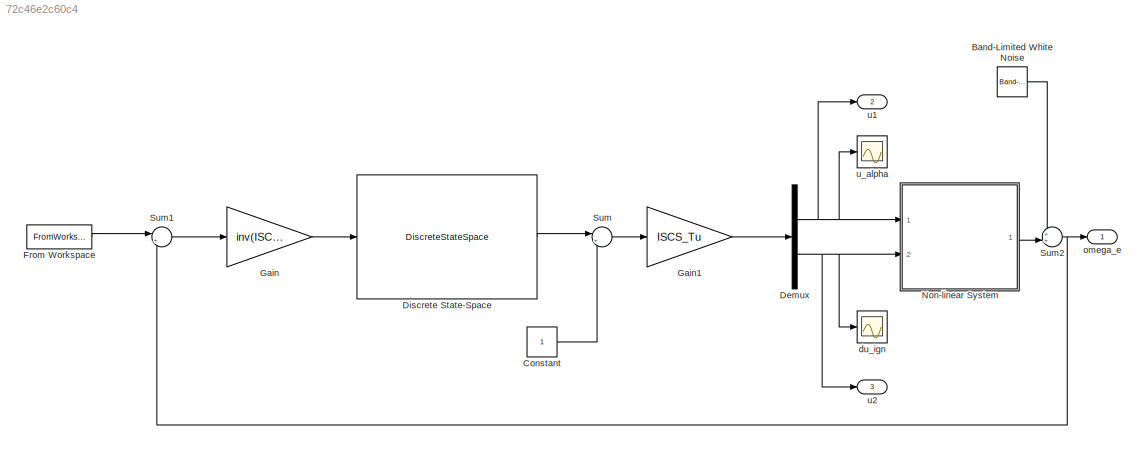
MODEL slx_72c46e2c60c4
KIND model
CONFIG AbsTol = auto
CONFIG EnableMultiTasking = off
CONFIG FixedStep = auto
CONFIG MaxStep = auto
CONFIG MinStep = auto
CONFIG RelTol = 1e-3
CONFIG SampleTimeConstraint = Unconstrained
CONFIG Solver = VariableStepAuto
CONFIG SolverName = VariableStepAuto
CONFIG StartTime = 0.0
CONFIG StopTime = 10.0
BLOCK [Reference] Band-Limited White Noise  REF=simulink/Sources/Band-Limited
White Noise
  Ports = [0, 1]
  SourceBlock = simulink/Sources/Band-Limited\nWhite Noise
  SourceProductBaseCode = SL
  SourceProductName = Simulink
  SourceType = Band-Limited White Noise.
BLOCK [Constant] Constant
BLOCK [Demux] Demux
  DisplayOption = bar
  Outputs = 2
  Ports = [1, 2]
BLOCK [DiscreteStateSpace] Discrete State-Space
  A = ISCS_Ad
  B = ISCS_Bd
  C = ISCS_Cd
  D = ISCS_Dd
  SampleTime = -1
BLOCK [FromWorkspace] From Workspace
  SampleTime = 0
  VariableName = omega_ref
  ZeroCross = on
BLOCK [Gain] Gain
  Gain = inv(ISCS_Ty)
  OutDataTypeStr = Inherit: Inherit via internal rule
  ParamDataTypeStr = Inherit: Inherit via internal rule
  SaturateOnIntegerOverflow = off
BLOCK [Gain] Gain1
  Gain = ISCS_Tu
  OutDataTypeStr = Inherit: Inherit via internal rule
  ParamDataTypeStr = Inherit: Inherit via internal rule
  SaturateOnIntegerOverflow = off
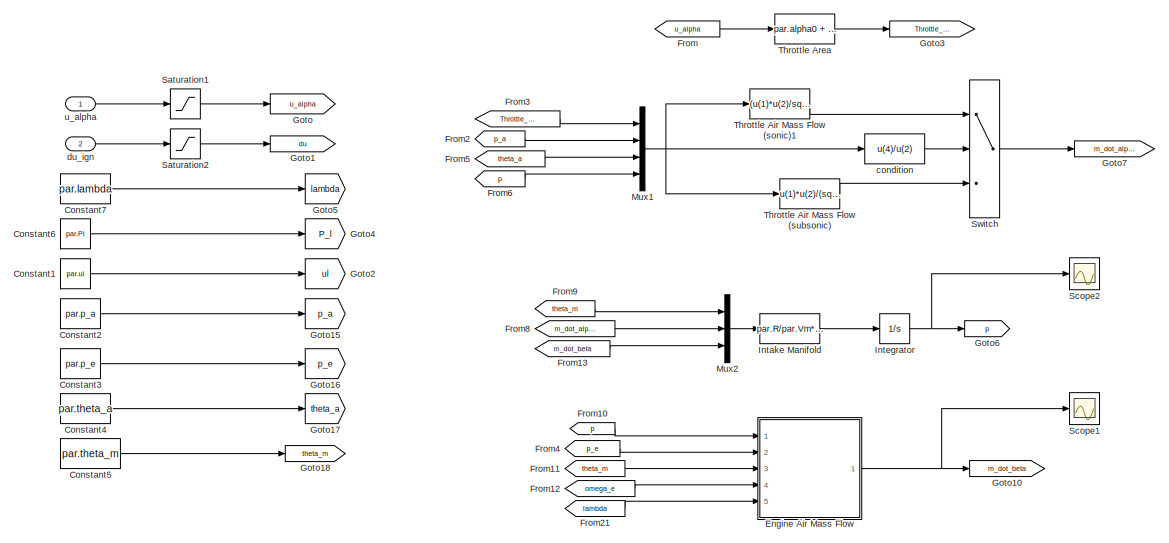
[diagram: Non-linear System - part 1/2, left side, full height]
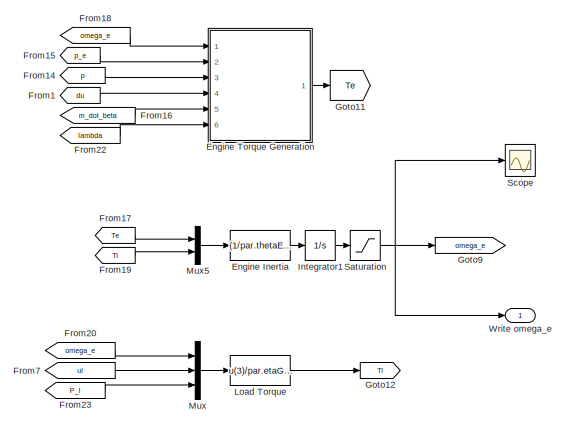
[diagram: Non-linear System - part 2/2, right side, full height]
BLOCK [SubSystem] Non-linear System
  Ports = [2, 1]
  RequestExecContextInheritance = off
  Variant = off
BLOCK [Constant] Non-linear System/Constant1
  Value = par.ul
BLOCK [Constant] Non-linear System/Constant2
  Value = par.p_a
BLOCK [Constant] Non-linear System/Constant3
  Value = par.p_e
BLOCK [Constant] Non-linear System/Constant4
  Value = par.theta_a
BLOCK [Constant] Non-linear System/Constant5
  Value = par.theta_m
BLOCK [Constant] Non-linear System/Constant6
  Value = par.Pl
BLOCK [Constant] Non-linear System/Constant7
  Value = par.lambda
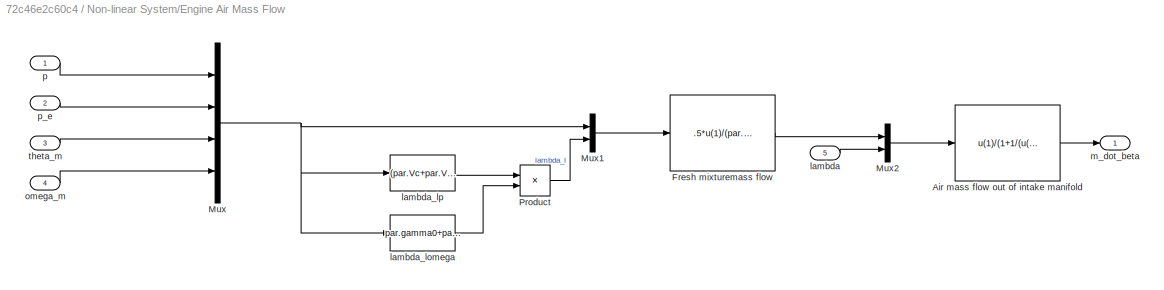
BLOCK [SubSystem] Non-linear System/Engine Air Mass Flow
  Ports = [5, 1]
  RequestExecContextInheritance = off
  Variant = off
BLOCK [Fcn] Non-linear System/Engine Air Mass Flow/Air mass flow out of intake manifold
  Expr = u(1)/(1+1/(u(2)*par.sigma0))
BLOCK [Fcn] Non-linear System/Engine Air Mass Flow/Fresh mixturemass  flow
  Expr = .5*u(1)/(par.R*u(3))*u(5)*par.Vd*u(4)/(2*pi)
BLOCK [Mux] Non-linear System/Engine Air Mass Flow/Mux
  DisplayOption = bar
  Ports = [4, 1]
BLOCK [Mux] Non-linear System/Engine Air Mass Flow/Mux1
  DisplayOption = bar
  Inputs = 2
  Ports = [2, 1]
BLOCK [Mux] Non-linear System/Engine Air Mass Flow/Mux2
  DisplayOption = bar
  Inputs = 2
  Ports = [2, 1]
BLOCK [Product] Non-linear System/Engine Air Mass Flow/Product
  InputSameDT = off
  OutDataTypeStr = Inherit: Inherit via internal rule
  Ports = [2, 1]
  RndMeth = Floor
  SaturateOnIntegerOverflow = off
BLOCK [Inport] Non-linear System/Engine Air Mass Flow/lambda
  IconDisplay = Port number
  Port = 5
BLOCK [Fcn] Non-linear System/Engine Air Mass Flow/lambda_lomega
  Expr = par.gamma0+par.gamma1*u(4)
BLOCK [Fcn] Non-linear System/Engine Air Mass Flow/lambda_lp
  Expr = (par.Vc+par.Vd)/par.Vd - (par.Vc/par.Vd)*(u(2)/u(1))^(1/par.kappa)
BLOCK [Outport] Non-linear System/Engine Air Mass Flow/m_dot_beta
  IconDisplay = Port number
BLOCK [Inport] Non-linear System/Engine Air Mass Flow/omega_m
  IconDisplay = Port number
  Port = 4
BLOCK [Inport] Non-linear System/Engine Air Mass Flow/p
  IconDisplay = Port number
BLOCK [Inport] Non-linear System/Engine Air Mass Flow/p_e
  IconDisplay = Port number
  Port = 2
BLOCK [Inport] Non-linear System/Engine Air Mass Flow/theta_m
  IconDisplay = Port number
  Port = 3
BLOCK [Fcn] Non-linear System/Engine Inertia
  Expr = (1/par.thetaE)*(u(1)-u(2))
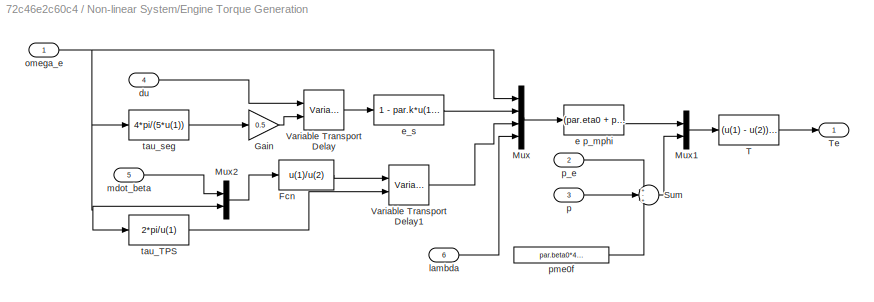
BLOCK [SubSystem] Non-linear System/Engine Torque Generation
  Ports = [6, 1]
  RequestExecContextInheritance = off
  Variant = off
BLOCK [Fcn] Non-linear System/Engine Torque Generation/Fcn
  Expr = u(1)/u(2)
BLOCK [Gain] Non-linear System/Engine Torque Generation/Gain
  Gain = 0.5
  OutDataTypeStr = Inherit: Inherit via internal rule
  ParamDataTypeStr = Inherit: Inherit via internal rule
  SaturateOnIntegerOverflow = off
BLOCK [Mux] Non-linear System/Engine Torque Generation/Mux
  DisplayOption = bar
  Ports = [4, 1]
BLOCK [Mux] Non-linear System/Engine Torque Generation/Mux1
  DisplayOption = bar
  Inputs = 2
  Ports = [2, 1]
BLOCK [Mux] Non-linear System/Engine Torque Generation/Mux2
  DisplayOption = bar
  Inputs = 2
  Ports = [2, 1]
BLOCK [Sum] Non-linear System/Engine Torque Generation/Sum
  IconShape = round
  InputSameDT = off
  Inputs = +-+
  OutDataTypeStr = Inherit: Inherit via internal rule
  Ports = [3, 1]
  SaturateOnIntegerOverflow = off
BLOCK [Fcn] Non-linear System/Engine Torque Generation/T
  Expr = (u(1) - u(2))*(par.Vd/(4*pi))
BLOCK [Outport] Non-linear System/Engine Torque Generation/Te 
  IconDisplay = Port number
BLOCK [VariableTransportDelay] Non-linear System/Engine Torque Generation/Variable Transport Delay
  InitialOutput = par.ss_duign
  MaximumDelay = 10
  MaximumPoints = 10240
  Ports = [2, 1]
BLOCK [VariableTransportDelay] Non-linear System/Engine Torque Generation/Variable Transport Delay1
  InitialOutput = par.ss_mdotalpha/par.ss_omegae
  MaximumDelay = 10
  MaximumPoints = 10240
  Ports = [2, 1]
BLOCK [Inport] Non-linear System/Engine Torque Generation/du
  IconDisplay = Port number
  Port = 4
BLOCK [Fcn] Non-linear System/Engine Torque Generation/e p_mphi
  Expr = (par.eta0 + par.eta1*u(1))*u(2)*(par.Hl/par.Vd)*(4*pi/(u(4)*par.sigma0))*u(3)
BLOCK [Fcn] Non-linear System/Engine Torque Generation/e_s
  Expr = 1 - par.k*u(1)^2
BLOCK [Inport] Non-linear System/Engine Torque Generation/lambda
  IconDisplay = Port number
  Port = 6
BLOCK [Inport] Non-linear System/Engine Torque Generation/mdot_beta
  IconDisplay = Port number
  Port = 5
BLOCK [Inport] Non-linear System/Engine Torque Generation/omega_e
  IconDisplay = Port number
BLOCK [Inport] Non-linear System/Engine Torque Generation/p
  IconDisplay = Port number
  Port = 3
BLOCK [Inport] Non-linear System/Engine Torque Generation/p_e
  IconDisplay = Port number
  Port = 2
BLOCK [Constant] Non-linear System/Engine Torque Generation/pme0f
  Value = par.beta0*4*pi/par.Vd
  VectorParams1D = off
BLOCK [Fcn] Non-linear System/Engine Torque Generation/tau_TPS
  Expr = 2*pi/u(1)
BLOCK [Fcn] Non-linear System/Engine Torque Generation/tau_seg
  Expr = 4*pi/(5*u(1))
BLOCK [From] Non-linear System/From
  GotoTag = u_alpha
BLOCK [From] Non-linear System/From1
  GotoTag = du
BLOCK [From] Non-linear System/From10
  GotoTag = p
BLOCK [From] Non-linear System/From11
  GotoTag = theta_m
BLOCK [From] Non-linear System/From12
  GotoTag = omega_e
BLOCK [From] Non-linear System/From13
  GotoTag = m_dot_beta
BLOCK [From] Non-linear System/From14
  GotoTag = p
BLOCK [From] Non-linear System/From15
  GotoTag = p_e
BLOCK [From] Non-linear System/From16
  GotoTag = m_dot_beta
BLOCK [From] Non-linear System/From17
  GotoTag = Te
BLOCK [From] Non-linear System/From18
  GotoTag = omega_e
BLOCK [From] Non-linear System/From19
  GotoTag = Tl
BLOCK [From] Non-linear System/From2
  GotoTag = p_a
BLOCK [From] Non-linear System/From20
  GotoTag = omega_e
BLOCK [From] Non-linear System/From21
  GotoTag = lambda
BLOCK [From] Non-linear System/From22
  GotoTag = lambda
BLOCK [From] Non-linear System/From23
  GotoTag = P_l
BLOCK [From] Non-linear System/From3
  GotoTag = Throttle_area
BLOCK [From] Non-linear System/From4
  GotoTag = p_e
BLOCK [From] Non-linear System/From5
  GotoTag = theta_a
BLOCK [From] Non-linear System/From6
  GotoTag = p
BLOCK [From] Non-linear System/From7
  GotoTag = ul
BLOCK [From] Non-linear System/From8
  GotoTag = m_dot_alpha
BLOCK [From] Non-linear System/From9
  GotoTag = theta_m
BLOCK [Goto] Non-linear System/Goto
  GotoTag = u_alpha
BLOCK [Goto] Non-linear System/Goto1
  GotoTag = du
BLOCK [Goto] Non-linear System/Goto10
  GotoTag = m_dot_beta
BLOCK [Goto] Non-linear System/Goto11
  GotoTag = Te
BLOCK [Goto] Non-linear System/Goto12
  GotoTag = Tl
BLOCK [Goto] Non-linear System/Goto15
  GotoTag = p_a
BLOCK [Goto] Non-linear System/Goto16
  GotoTag = p_e
BLOCK [Goto] Non-linear System/Goto17
  GotoTag = theta_a
BLOCK [Goto] Non-linear System/Goto18
  GotoTag = theta_m
BLOCK [Goto] Non-linear System/Goto2
  GotoTag = ul
BLOCK [Goto] Non-linear System/Goto3
  GotoTag = Throttle_area
BLOCK [Goto] Non-linear System/Goto4
  GotoTag = P_l
BLOCK [Goto] Non-linear System/Goto5
  GotoTag = lambda
BLOCK [Goto] Non-linear System/Goto6
  GotoTag = p
BLOCK [Goto] Non-linear System/Goto7
  GotoTag = m_dot_alpha
BLOCK [Goto] Non-linear System/Goto9
  GotoTag = omega_e
BLOCK [Fcn] Non-linear System/Intake Manifold
  Expr = par.R/par.Vm*u(1)*(u(2)-u(3))
BLOCK [Integrator] Non-linear System/Integrator
  InitialCondition = par.pm_initial
  Ports = [1, 1]
BLOCK [Integrator] Non-linear System/Integrator1
  InitialCondition = par.omegae_initial
  Ports = [1, 1]
BLOCK [Fcn] Non-linear System/Load Torque
  Expr = u(3)/par.etaGen/u(1)*u(2)
BLOCK [Mux] Non-linear System/Mux
  DisplayOption = bar
  Inputs = 3
  Ports = [3, 1]
BLOCK [Mux] Non-linear System/Mux1
  DisplayOption = bar
  Ports = [4, 1]
BLOCK [Mux] Non-linear System/Mux2
  DisplayOption = bar
  Inputs = 3
  Ports = [3, 1]
BLOCK [Mux] Non-linear System/Mux5
  DisplayOption = bar
  Inputs = 2
  Ports = [2, 1]
BLOCK [Saturate] Non-linear System/Saturation
  InputPortMap = u0
  LowerLimit = 20
  Ports = [1, 1]
  UpperLimit = 500
BLOCK [Saturate] Non-linear System/Saturation1
  InputPortMap = u0
  LowerLimit = 0
  Ports = [1, 1]
  UpperLimit = 5
BLOCK [Saturate] Non-linear System/Saturation2
  InputPortMap = u0
  LowerLimit = -100
  Ports = [1, 1]
  UpperLimit = 0
BLOCK [Scope] Non-linear System/Scope
  NumInputPorts = 1
  Ports = [1]
  ScopeSpecificationString = Simulink.scopes.TimeScopeBlockCfg('CurrentConfiguration', extmgr.ConfigurationSet(extmgr.Configuration('Core','General UI',true),extmgr.Configuration('Core','Source UI',true),extmgr.Configuration('Sources','WiredSimulink',true,'DataLoggingVariableName','ScopeData1'),extmgr.Configuration('Visuals','Time Domain',true,'SerializedDisplays',{struct('MinYLimReal','58.12067','MaxYLimReal','177.14411','YL...<+1434ch>
BLOCK [Scope] Non-linear System/Scope1
  NumInputPorts = 1
  Ports = [1]
  ScopeSpecificationString = Simulink.scopes.TimeScopeBlockCfg('CurrentConfiguration', extmgr.ConfigurationSet(extmgr.Configuration('Core','General UI',true),extmgr.Configuration('Core','Source UI',true),extmgr.Configuration('Sources','WiredSimulink',true,'DataLoggingVariableName','ScopeData2'),extmgr.Configuration('Visuals','Time Domain',true,'SerializedDisplays',{struct('MinYLimReal','0.00147','MaxYLimReal','0.01206','YLabe...<+1420ch>
BLOCK [Scope] Non-linear System/Scope2
  NumInputPorts = 1
  Ports = [1]
  ScopeSpecificationString = Simulink.scopes.TimeScopeBlockCfg('CurrentConfiguration', extmgr.ConfigurationSet(extmgr.Configuration('Core','General UI',true),extmgr.Configuration('Core','Source UI',true),extmgr.Configuration('Sources','WiredSimulink',true),extmgr.Configuration('Visuals','Time Domain',true,'SerializedDisplays',{struct('MinYLimReal','15605.67625','MaxYLimReal','59548.91371','YLabelReal','','MinYLimMag','15605.6...<+1414ch>
BLOCK [Switch] Non-linear System/Switch
  InputSameDT = off
  SaturateOnIntegerOverflow = off
  Threshold = .5
BLOCK [Fcn] Non-linear System/Throttle Air Mass Flow (sonic)1
  Expr = (u(1)*u(2)/sqrt(par.R*u(3)))*sqrt(2*(u(4)/u(2))*(1-(u(4)/u(2))))
BLOCK [Fcn] Non-linear System/Throttle Air Mass Flow (subsonic)
  Expr = u(1)*u(2)/(sqrt(2)*sqrt(par.R*u(3)))
BLOCK [Fcn] Non-linear System/Throttle Area
  Expr = par.alpha0 + par.alpha1*u(1)
BLOCK [Outport] Non-linear System/Write omega_e
  IconDisplay = Port number
BLOCK [Fcn] Non-linear System/condition 
  Expr = u(4)/u(2)
BLOCK [Inport] Non-linear System/du_ign
  IconDisplay = Port number
  Port = 2
BLOCK [Inport] Non-linear System/u_alpha
  IconDisplay = Port number
BLOCK [Sum] Sum
  IconShape = round
  InputSameDT = off
  Inputs = |++
  OutDataTypeStr = Inherit: Inherit via internal rule
  Ports = [2, 1]
  SaturateOnIntegerOverflow = off
BLOCK [Sum] Sum1
  IconShape = round
  InputSameDT = off
  Inputs = |+-
  OutDataTypeStr = Inherit: Inherit via internal rule
  Ports = [2, 1]
  SaturateOnIntegerOverflow = off
BLOCK [Sum] Sum2
  IconShape = round
  InputSameDT = off
  Inputs = ++|
  OutDataTypeStr = Inherit: Inherit via internal rule
  Ports = [2, 1]
  SaturateOnIntegerOverflow = off
BLOCK [Scope] du_ign
  NumInputPorts = 1
  Ports = [1]
  ScopeSpecificationString = Simulink.scopes.TimeScopeBlockCfg('CurrentConfiguration', extmgr.ConfigurationSet(extmgr.Configuration('Core','General UI',true),extmgr.Configuration('Core','Source UI',true),extmgr.Configuration('Sources','WiredSimulink',true,'DataLoggingVariableName','ScopeData2'),extmgr.Configuration('Visuals','Time Domain',true,'SerializedDisplays',{struct('MinYLimReal','-49.20469','MaxYLimReal','-22.31059','Y...<+1403ch>
BLOCK [Outport] omega_e
  IconDisplay = Port number
BLOCK [Outport] u1
  IconDisplay = Port number
  Port = 2
BLOCK [Outport] u2
  IconDisplay = Port number
  Port = 3
BLOCK [Scope] u_alpha
  NumInputPorts = 1
  Ports = [1]
  ScopeSpecificationString = Simulink.scopes.TimeScopeBlockCfg('CurrentConfiguration', extmgr.ConfigurationSet(extmgr.Configuration('Core','General UI',true),extmgr.Configuration('Core','Source UI',true),extmgr.Configuration('Sources','WiredSimulink',true,'DataLoggingVariableName','ScopeData1'),extmgr.Configuration('Visuals','Time Domain',true,'SerializedDisplays',{struct('MinYLimReal','1.9605','MaxYLimReal','2.35546','YLabel...<+1389ch>
LINE Band-Limited White Noise:1 -> Sum2:1
LINE Constant:1 -> Sum:2
NET Demux:1 -> Non-linear System:1, u1:1, u_alpha:1
NET Demux:2 -> Non-linear System:2, du_ign:1, u2:1
LINE Discrete State-Space:1 -> Sum:1
LINE From Workspace:1 -> Sum1:1
LINE Gain1:1 -> Demux:1
LINE Gain:1 -> Discrete State-Space:1
LINE Non-linear System/Constant1:1 -> Non-linear System/Goto2:1
LINE Non-linear System/Constant2:1 -> Non-linear System/Goto15:1
LINE Non-linear System/Constant3:1 -> Non-linear System/Goto16:1
LINE Non-linear System/Constant4:1 -> Non-linear System/Goto17:1
LINE Non-linear System/Constant5:1 -> Non-linear System/Goto18:1
LINE Non-linear System/Constant6:1 -> Non-linear System/Goto4:1
LINE Non-linear System/Constant7:1 -> Non-linear System/Goto5:1
LINE Non-linear System/Engine Air Mass Flow/Air mass flow out of intake manifold:1 -> Non-linear System/Engine Air Mass Flow/m_dot_beta:1
LINE Non-linear System/Engine Air Mass Flow/Fresh mixturemass  flow:1 -> Non-linear System/Engine Air Mass Flow/Mux2:1
LINE Non-linear System/Engine Air Mass Flow/Mux1:1 -> Non-linear System/Engine Air Mass Flow/Fresh mixturemass  flow:1
LINE Non-linear System/Engine Air Mass Flow/Mux2:1 -> Non-linear System/Engine Air Mass Flow/Air mass flow out of intake manifold:1
NET Non-linear System/Engine Air Mass Flow/Mux:1 -> Non-linear System/Engine Air Mass Flow/Mux1:1, Non-linear System/Engine Air Mass Flow/lambda_lomega:1, Non-linear System/Engine Air Mass Flow/lambda_lp:1
LINE Non-linear System/Engine Air Mass Flow/Product:1 -> Non-linear System/Engine Air Mass Flow/Mux1:2
LINE Non-linear System/Engine Air Mass Flow/lambda:1 -> Non-linear System/Engine Air Mass Flow/Mux2:2
LINE Non-linear System/Engine Air Mass Flow/lambda_lomega:1 -> Non-linear System/Engine Air Mass Flow/Product:2
LINE Non-linear System/Engine Air Mass Flow/lambda_lp:1 -> Non-linear System/Engine Air Mass Flow/Product:1
LINE Non-linear System/Engine Air Mass Flow/omega_m:1 -> Non-linear System/Engine Air Mass Flow/Mux:4
LINE Non-linear System/Engine Air Mass Flow/p:1 -> Non-linear System/Engine Air Mass Flow/Mux:1
LINE Non-linear System/Engine Air Mass Flow/p_e:1 -> Non-linear System/Engine Air Mass Flow/Mux:2
LINE Non-linear System/Engine Air Mass Flow/theta_m:1 -> Non-linear System/Engine Air Mass Flow/Mux:3
NET Non-linear System/Engine Air Mass Flow:1 -> Non-linear System/Goto10:1, Non-linear System/Scope1:1
LINE Non-linear System/Engine Inertia:1 -> Non-linear System/Integrator1:1
LINE Non-linear System/Engine Torque Generation/Fcn:1 -> Non-linear System/Engine Torque Generation/Variable Transport Delay1:1
LINE Non-linear System/Engine Torque Generation/Gain:1 -> Non-linear System/Engine Torque Generation/Variable Transport Delay:2
LINE Non-linear System/Engine Torque Generation/Mux1:1 -> Non-linear System/Engine Torque Generation/T:1
LINE Non-linear System/Engine Torque Generation/Mux2:1 -> Non-linear System/Engine Torque Generation/Fcn:1
LINE Non-linear System/Engine Torque Generation/Mux:1 -> Non-linear System/Engine Torque Generation/e p_mphi:1
LINE Non-linear System/Engine Torque Generation/Sum:1 -> Non-linear System/Engine Torque Generation/Mux1:2
LINE Non-linear System/Engine Torque Generation/T:1 -> Non-linear System/Engine Torque Generation/Te :1
LINE Non-linear System/Engine Torque Generation/Variable Transport Delay1:1 -> Non-linear System/Engine Torque Generation/Mux:3
LINE Non-linear System/Engine Torque Generation/Variable Transport Delay:1 -> Non-linear System/Engine Torque Generation/e_s:1
LINE Non-linear System/Engine Torque Generation/du:1 -> Non-linear System/Engine Torque Generation/Variable Transport Delay:1
LINE Non-linear System/Engine Torque Generation/e p_mphi:1 -> Non-linear System/Engine Torque Generation/Mux1:1
LINE Non-linear System/Engine Torque Generation/e_s:1 -> Non-linear System/Engine Torque Generation/Mux:2
LINE Non-linear System/Engine Torque Generation/lambda:1 -> Non-linear System/Engine Torque Generation/Mux:4
LINE Non-linear System/Engine Torque Generation/mdot_beta:1 -> Non-linear System/Engine Torque Generation/Mux2:1
NET Non-linear System/Engine Torque Generation/omega_e:1 -> Non-linear System/Engine Torque Generation/Mux2:2, Non-linear System/Engine Torque Generation/Mux:1, Non-linear System/Engine Torque Generation/tau_TPS:1, Non-linear System/Engine Torque Generation/tau_seg:1
LINE Non-linear System/Engine Torque Generation/p:1 -> Non-linear System/Engine Torque Generation/Sum:2
LINE Non-linear System/Engine Torque Generation/p_e:1 -> Non-linear System/Engine Torque Generation/Sum:1
LINE Non-linear System/Engine Torque Generation/pme0f:1 -> Non-linear System/Engine Torque Generation/Sum:3
LINE Non-linear System/Engine Torque Generation/tau_TPS:1 -> Non-linear System/Engine Torque Generation/Variable Transport Delay1:2
LINE Non-linear System/Engine Torque Generation/tau_seg:1 -> Non-linear System/Engine Torque Generation/Gain:1
LINE Non-linear System/Engine Torque Generation:1 -> Non-linear System/Goto11:1
LINE Non-linear System/From10:1 -> Non-linear System/Engine Air Mass Flow:1
LINE Non-linear System/From11:1 -> Non-linear System/Engine Air Mass Flow:3
LINE Non-linear System/From12:1 -> Non-linear System/Engine Air Mass Flow:4
LINE Non-linear System/From13:1 -> Non-linear System/Mux2:3
LINE Non-linear System/From14:1 -> Non-linear System/Engine Torque Generation:3
LINE Non-linear System/From15:1 -> Non-linear System/Engine Torque Generation:2
LINE Non-linear System/From16:1 -> Non-linear System/Engine Torque Generation:5
LINE Non-linear System/From17:1 -> Non-linear System/Mux5:1
LINE Non-linear System/From18:1 -> Non-linear System/Engine Torque Generation:1
LINE Non-linear System/From19:1 -> Non-linear System/Mux5:2
LINE Non-linear System/From1:1 -> Non-linear System/Engine Torque Generation:4
LINE Non-linear System/From20:1 -> Non-linear System/Mux:1
LINE Non-linear System/From21:1 -> Non-linear System/Engine Air Mass Flow:5
LINE Non-linear System/From22:1 -> Non-linear System/Engine Torque Generation:6
LINE Non-linear System/From23:1 -> Non-linear System/Mux:3
LINE Non-linear System/From2:1 -> Non-linear System/Mux1:2
LINE Non-linear System/From3:1 -> Non-linear System/Mux1:1
LINE Non-linear System/From4:1 -> Non-linear System/Engine Air Mass Flow:2
LINE Non-linear System/From5:1 -> Non-linear System/Mux1:3
LINE Non-linear System/From6:1 -> Non-linear System/Mux1:4
LINE Non-linear System/From7:1 -> Non-linear System/Mux:2
LINE Non-linear System/From8:1 -> Non-linear System/Mux2:2
LINE Non-linear System/From9:1 -> Non-linear System/Mux2:1
LINE Non-linear System/From:1 -> Non-linear System/Throttle Area:1
LINE Non-linear System/Intake Manifold:1 -> Non-linear System/Integrator:1
LINE Non-linear System/Integrator1:1 -> Non-linear System/Saturation:1
NET Non-linear System/Integrator:1 -> Non-linear System/Goto6:1, Non-linear System/Scope2:1
LINE Non-linear System/Load Torque:1 -> Non-linear System/Goto12:1
NET Non-linear System/Mux1:1 -> Non-linear System/Throttle Air Mass Flow (sonic)1:1, Non-linear System/Throttle Air Mass Flow (subsonic):1, Non-linear System/condition :1
LINE Non-linear System/Mux2:1 -> Non-linear System/Intake Manifold:1
LINE Non-linear System/Mux5:1 -> Non-linear System/Engine Inertia:1
LINE Non-linear System/Mux:1 -> Non-linear System/Load Torque:1
LINE Non-linear System/Saturation1:1 -> Non-linear System/Goto:1
LINE Non-linear System/Saturation2:1 -> Non-linear System/Goto1:1
NET Non-linear System/Saturation:1 -> Non-linear System/Goto9:1, Non-linear System/Scope:1, Non-linear System/Write omega_e:1
LINE Non-linear System/Switch:1 -> Non-linear System/Goto7:1
LINE Non-linear System/Throttle Air Mass Flow (sonic)1:1 -> Non-linear System/Switch:1
LINE Non-linear System/Throttle Air Mass Flow (subsonic):1 -> Non-linear System/Switch:3
LINE Non-linear System/Throttle Area:1 -> Non-linear System/Goto3:1
LINE Non-linear System/condition :1 -> Non-linear System/Switch:2
LINE Non-linear System/du_ign:1 -> Non-linear System/Saturation2:1
LINE Non-linear System/u_alpha:1 -> Non-linear System/Saturation1:1
LINE Non-linear System:1 -> Sum2:2
LINE Sum1:1 -> Gain:1
NET Sum2:1 -> Sum1:2, omega_e:1
LINE Sum:1 -> Gain1:1
note: NET lines group one-source signal fan-out (src -> all destinations, sorted); 1:1 wires keep LINE
